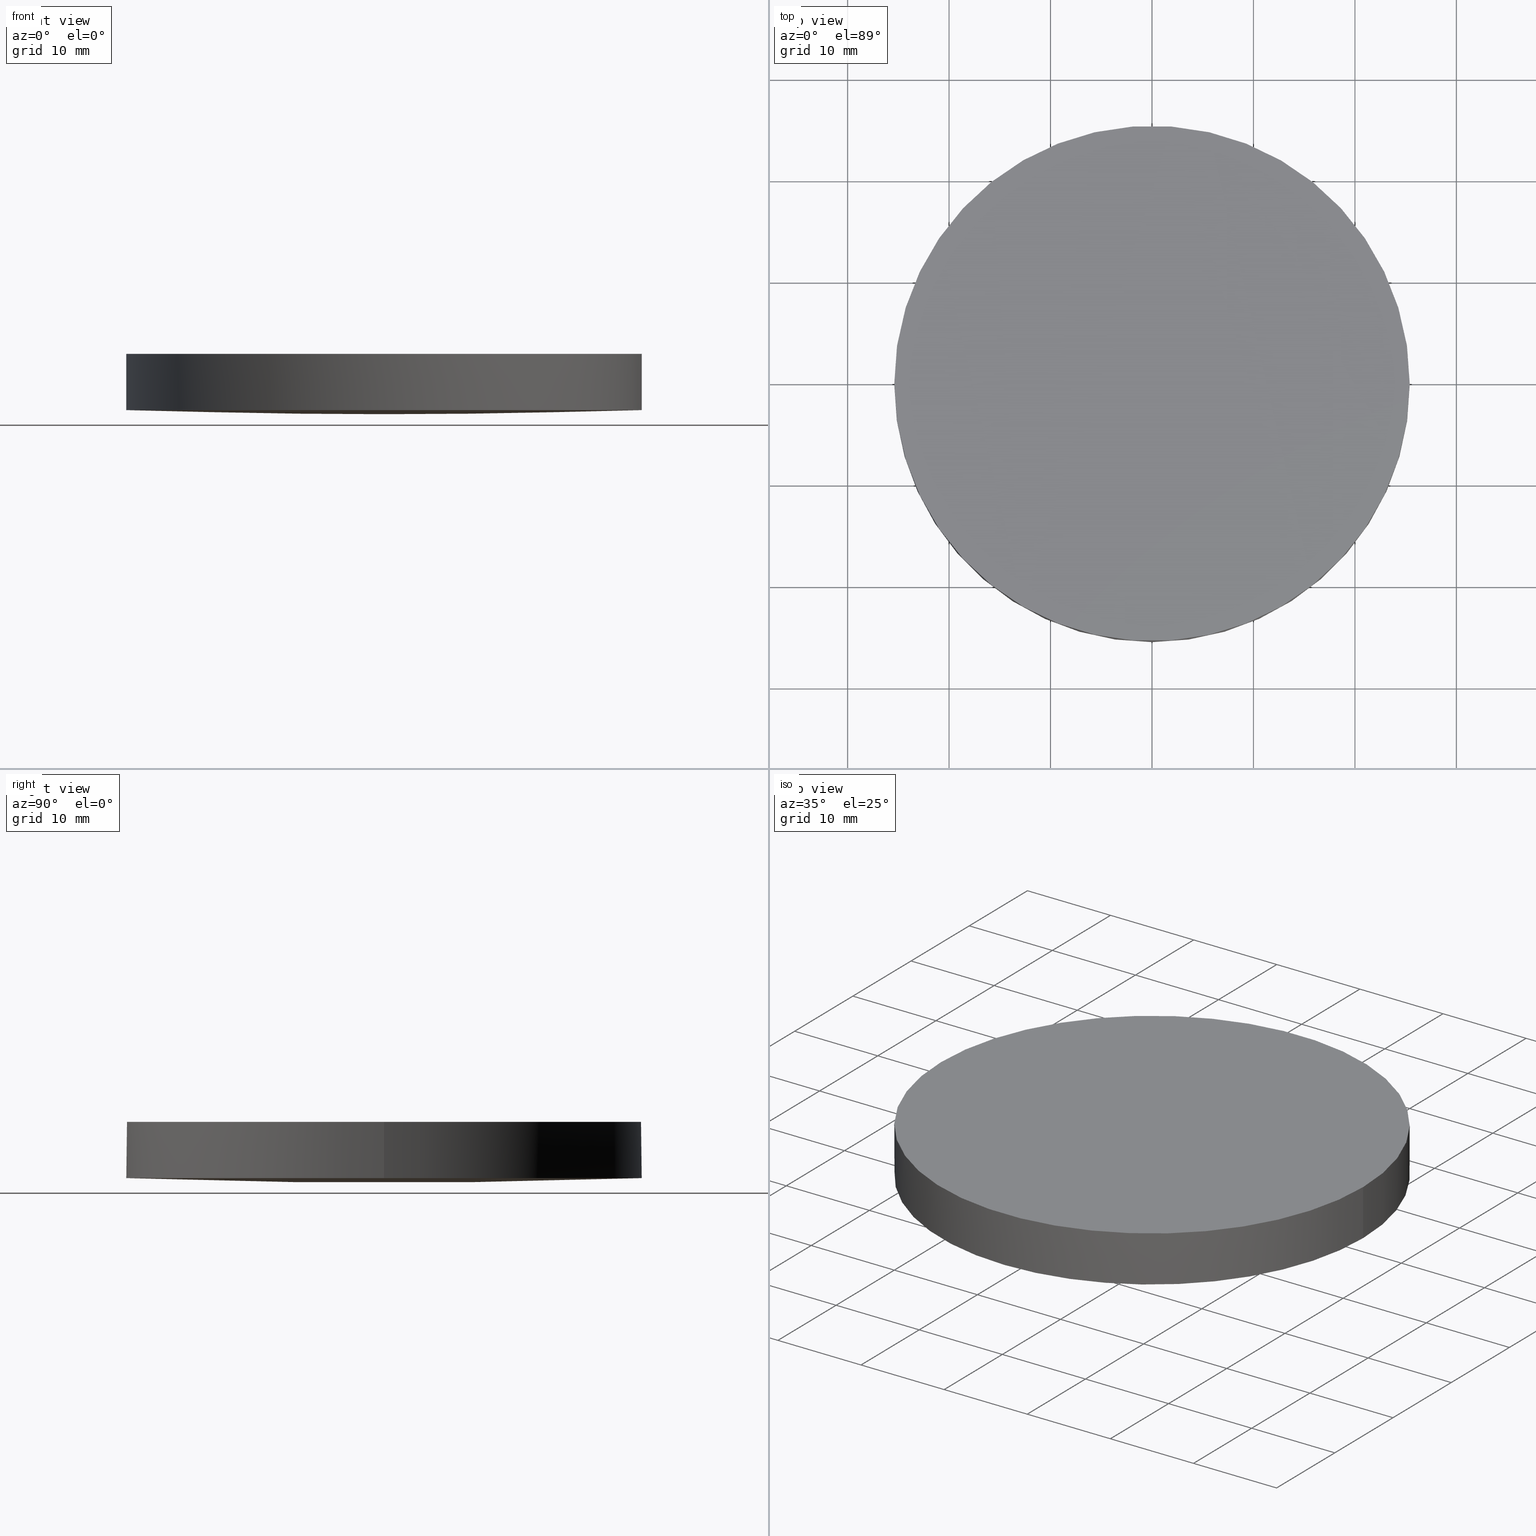
[diagram: canonical four-view strip — front | top / right | iso, engineering-drawing reading convention]
A machine part, canonical four-view strip (front | top / right | iso — engineering-drawing reading convention). The complete STEP part file that produces these views, byte-faithful:
ISO-10303-21;
HEADER;
FILE_DESCRIPTION (( 'STEP AP203' ),
    '1' );
FILE_NAME ('110-1550E UVFS pl-cx 50.8 F1500.STEP',
    '2018-12-13T15:08:55',
    ( '' ),
    ( '' ),
    'SwSTEP 2.0',
    'SolidWorks 2017',
    '' );
FILE_SCHEMA (( 'CONFIG_CONTROL_DESIGN' ));
ENDSEC;

DATA;
#1 = DIRECTION ( 'NONE',  ( -0.0000000000000000000, -0.0000000000000000000, -1.000000000000000000 ) ) ;
#2 = CARTESIAN_POINT ( 'NONE',  ( 0.0000000000000000000, 0.0000000000000000000, 0.0000000000000000000 ) ) ;
#3 = DIRECTION ( 'NONE',  ( 1.000000000000000000, 0.0000000000000000000, 0.0000000000000000000 ) ) ;
#4 = CARTESIAN_POINT ( 'NONE',  ( -25.39999999999999900, 7.995584178184967200E-015, 0.4518724189069909800 ) ) ;
#5 = ORIENTED_EDGE ( 'NONE', *, *, #77, .T. ) ;
#6 = DIRECTION ( 'NONE',  ( 0.0000000000000000000, 0.0000000000000000000, 1.000000000000000000 ) ) ;
#7 = APPROVAL_ROLE ( '' ) ;
#8 = APPROVAL ( #97, 'UNSPECIFIED' ) ;
#9 = APPLICATION_PROTOCOL_DEFINITION ( 'international standard', 'config_control_design', 1994, #169 ) ;
#10 = AXIS2_PLACEMENT_3D ( 'NONE', #166, #26, #24 ) ;
#11 = COORDINATED_UNIVERSAL_TIME_OFFSET ( 2, 0, .AHEAD. ) ;
#12 = ORIENTED_EDGE ( 'NONE', *, *, #182, .T. ) ;
#13 = CARTESIAN_POINT ( 'NONE',  ( 9.992007221626412800E-016, 4.884981308350691100E-015, 6.000000000000000000 ) ) ;
#14 = PERSON_AND_ORGANIZATION ( #175, #111 ) ;
#15 = ORIENTED_EDGE ( 'NONE', *, *, #182, .F. ) ;
#16 = DIRECTION ( 'NONE',  ( 1.000000000000000000, 0.0000000000000000000, 0.0000000000000000000 ) ) ;
#17 = CARTESIAN_POINT ( 'NONE',  ( 25.39999999999999900, 4.884981308350691100E-015, 0.4518724189069909800 ) ) ;
#18 = CARTESIAN_POINT ( 'NONE',  ( 9.992007221626412800E-016, 4.884981308350691100E-015, 0.4518724189069909800 ) ) ;
#19 = DIRECTION ( 'NONE',  ( 1.000000000000000000, 0.0000000000000000000, 0.0000000000000000000 ) ) ;
#20 = CARTESIAN_POINT ( 'NONE',  ( -25.53577561328597400, -25.70466906950982300, 0.9197954570985267300 ) ) ;
#21 = CC_DESIGN_APPROVAL ( #8, ( #215 ) ) ;
#22 = CARTESIAN_POINT ( 'NONE',  ( 9.992007221626412800E-016, 4.884981308350691100E-015, 0.4518724189069909800 ) ) ;
#23 = ORIENTED_EDGE ( 'NONE', *, *, #203, .F. ) ;
#24 = DIRECTION ( 'NONE',  ( -3.255406916435471100E-016, -1.000000000000000000, -3.109432921510030800E-016 ) ) ;
#25 = AXIS2_PLACEMENT_3D ( 'NONE', #107, #1, #19 ) ;
#26 = DIRECTION ( 'NONE',  ( 1.000000000000000000, -3.255406916435470100E-016, -2.813334110390849800E-016 ) ) ;
#27 = CALENDAR_DATE ( 2018, 13, 12 ) ;
#28 = VECTOR ( 'NONE', #67, 1000.000000000000000 ) ;
#29 = CYLINDRICAL_SURFACE ( 'NONE', #195, 25.39999999999999900 ) ;
#30 = UNCERTAINTY_MEASURE_WITH_UNIT (LENGTH_MEASURE( 1.000000000000000100E-005 ), #89, 'distance_accuracy_value', 'NONE');
#31 = LOCAL_TIME ( 17, 8, 55.00000000000000000, #176 ) ;
#32 = EDGE_LOOP ( 'NONE', ( #78, #38, #171, #12, #217 ) ) ;
#33 = CARTESIAN_POINT ( 'NONE',  ( 25.53577561328555500, -25.70466906950983700, 0.9197954570984757700 ) ) ;
#34 = EDGE_CURVE ( 'NONE', #128, #234, #213, .T. ) ;
#35 = CC_DESIGN_PERSON_AND_ORGANIZATION_ASSIGNMENT ( #14, #60, ( #143 ) ) ;
#36 = EDGE_LOOP ( 'NONE', ( #185, #5, #40, #15, #152 ) ) ;
#37 = DIRECTION ( 'NONE',  ( 0.0000000000000000000, 0.0000000000000000000, 1.000000000000000000 ) ) ;
#38 = ORIENTED_EDGE ( 'NONE', *, *, #88, .F. ) ;
#39 = CARTESIAN_POINT ( 'NONE',  ( -17.02703099921650700, -25.70466906950983000, 0.6151355803498523800 ) ) ;
#40 = ORIENTED_EDGE ( 'NONE', *, *, #34, .T. ) ;
#41 = CARTESIAN_POINT ( 'NONE',  ( -17.04175489891647600, -8.571926451094192600, -0.001841013024038537900 ) ) ;
#42 = VERTEX_POINT ( 'NONE', #84 ) ;
#43 = APPLICATION_CONTEXT ( 'configuration controlled 3d designs of mechanical parts and assemblies' ) ;
#44 = EDGE_CURVE ( 'NONE', #234, #128, #208, .T. ) ;
#45 = SECURITY_CLASSIFICATION ( '', '', #62 ) ;
#46 = DATE_TIME_ROLE ( 'classification_date' ) ;
#47 = APPROVAL_DATE_TIME ( #125, #8 ) ;
#48 = LINE ( 'NONE', #228, #28 ) ;
#49 = CARTESIAN_POINT ( 'NONE',  ( 17.04175489891612100, -8.571926451094199700, -0.001841013024078599400 ) ) ;
#50 = LOCAL_TIME ( 17, 8, 55.00000000000000000, #191 ) ;
#51 = DIRECTION ( 'NONE',  ( 1.000000000000000000, 0.0000000000000000000, -0.0000000000000000000 ) ) ;
#52 = CIRCLE ( 'NONE', #25, 25.39999999999999900 ) ;
#53 = CARTESIAN_POINT ( 'NONE',  ( -8.514197117048677700, 25.70466906951017400, 0.4627812480441714800 ) ) ;
#54 = CC_DESIGN_APPROVAL ( #201, ( #45 ) ) ;
#55 = COORDINATED_UNIVERSAL_TIME_OFFSET ( 2, 0, .AHEAD. ) ;
#56 = VERTEX_POINT ( 'NONE', #194 ) ;
#57 = CARTESIAN_POINT ( 'NONE',  ( -8.514197117048691900, -25.70466906950983000, 0.4627812480441715300 ) ) ;
#58 = DIRECTION ( 'NONE',  ( 1.000000000000000000, 0.0000000000000000000, 0.0000000000000000000 ) ) ;
#59 = CALENDAR_DATE ( 2018, 13, 12 ) ;
#60 = PERSON_AND_ORGANIZATION_ROLE ( 'creator' ) ;
#61 = APPROVAL_ROLE ( '' ) ;
#62 = SECURITY_CLASSIFICATION_LEVEL ( 'unclassified' ) ;
#63 = AXIS2_PLACEMENT_3D ( 'NONE', #147, #162, #51 ) ;
#64 = ORIENTED_EDGE ( 'NONE', *, *, #44, .F. ) ;
#65 = DIRECTION ( 'NONE',  ( -0.0000000000000000000, -0.0000000000000000000, -1.000000000000000000 ) ) ;
#66 = CC_DESIGN_SECURITY_CLASSIFICATION ( #45, ( #143 ) ) ;
#67 = DIRECTION ( 'NONE',  ( 0.0000000000000000000, 0.0000000000000000000, 1.000000000000000000 ) ) ;
#68 = FACE_OUTER_BOUND ( 'NONE', #230, .T. ) ;
#69 = LOCAL_TIME ( 17, 8, 55.00000000000000000, #55 ) ;
#70 = PLANE ( 'NONE',  #63 ) ;
#71 = EDGE_LOOP ( 'NONE', ( #23, #148, #119 ) ) ;
#72 = DIRECTION ( 'NONE',  ( 1.000000000000000000, 0.0000000000000000000, 0.0000000000000000000 ) ) ;
#73 = CARTESIAN_POINT ( 'NONE',  ( 9.992007221626412800E-016, 4.884981308350691100E-015, 0.4518724189069909800 ) ) ;
#74 = DIRECTION ( 'NONE',  ( 1.000000000000000000, 0.0000000000000000000, 0.0000000000000000000 ) ) ;
#75 = CARTESIAN_POINT ( 'NONE',  ( -2.012279232133096200E-013, 25.70466906951016700, 0.4627812480441669300 ) ) ;
#76 = CALENDAR_DATE ( 2018, 13, 12 ) ;
#77 = EDGE_CURVE ( 'NONE', #205, #128, #48, .T. ) ;
#78 = ORIENTED_EDGE ( 'NONE', *, *, #77, .F. ) ;
#79 = PERSON_AND_ORGANIZATION ( #175, #111 ) ;
#80 = CARTESIAN_POINT ( 'NONE',  ( 17.04175489891612800, 8.571926451094526600, -0.001841013024075671600 ) ) ;
#81 = CARTESIAN_POINT ( 'NONE',  ( 8.514197117048384600, -25.70466906950983700, 0.4627812480441060900 ) ) ;
#82 = DIRECTION ( 'NONE',  ( 1.000000000000000000, 0.0000000000000000000, 0.0000000000000000000 ) ) ;
#83 = ORIENTED_EDGE ( 'NONE', *, *, #110, .T. ) ;
#84 = CARTESIAN_POINT ( 'NONE',  ( -2.197407186387518400E-014, 25.39999999999935200, 0.4518724189069877600 ) ) ;
#85 = ADVANCED_FACE ( 'NONE', ( #209 ), #160, .T. ) ;
#86 = COORDINATED_UNIVERSAL_TIME_OFFSET ( 2, 0, .AHEAD. ) ;
#87 = FACE_OUTER_BOUND ( 'NONE', #71, .T. ) ;
#88 = EDGE_CURVE ( 'NONE', #157, #205, #224, .T. ) ;
#89 =( LENGTH_UNIT ( ) NAMED_UNIT ( * ) SI_UNIT ( .MILLI., .METRE. ) );
#90 = CARTESIAN_POINT ( 'NONE',  ( -17.04175489891647300, 8.571926451094535400, -0.001841013024035610400 ) ) ;
#91 = DATE_AND_TIME ( #27, #69 ) ;
#92 = PERSON_AND_ORGANIZATION ( #175, #111 ) ;
#93 = CARTESIAN_POINT ( 'NONE',  ( -2.081668171172168800E-013, 8.571926451094528300, -0.1543270917221383200 ) ) ;
#94 = FACE_OUTER_BOUND ( 'NONE', #32, .T. ) ;
#95 = AXIS2_PLACEMENT_3D ( 'NONE', #73, #167, #3 ) ;
#96 = AXIS2_PLACEMENT_3D ( 'NONE', #2, #6, #134 ) ;
#97 = APPROVAL_STATUS ( 'not_yet_approved' ) ;
#98 = PERSON_AND_ORGANIZATION ( #175, #111 ) ;
#99 = ORIENTED_EDGE ( 'NONE', *, *, #203, .T. ) ;
#100 = APPROVAL_PERSON_ORGANIZATION ( #98, #201, #137 ) ;
#101 = CARTESIAN_POINT ( 'NONE',  ( 25.53577561328557300, 25.70466906951016000, 0.9197954570984757700 ) ) ;
#102 = CARTESIAN_POINT ( 'NONE',  ( 8.521559656318048700, 8.571926451094528300, -0.1543270917221991300 ) ) ;
#103 = CARTESIAN_POINT ( 'NONE',  ( 8.521559656318043400, -8.571926451094197900, -0.1543270917222020500 ) ) ;
#104 = CARTESIAN_POINT ( 'NONE',  ( -3.860765216086626300E-014, -25.70466906950983000, 0.4627812480441084700 ) ) ;
#105 = CARTESIAN_POINT ( 'NONE',  ( 9.992007221626412800E-016, 4.884981308350691100E-015, 6.000000000000000000 ) ) ;
#106 = CIRCLE ( 'NONE', #95, 25.39999999999999900 ) ;
#107 = CARTESIAN_POINT ( 'NONE',  ( 9.992007221626412800E-016, 4.884981308350691100E-015, 0.4518724189069909800 ) ) ;
#108 = PRODUCT ( '110-1550E UVFS pl-cx 50.8 F1500', '110-1550E UVFS pl-cx 50.8 F1500', '', ( #188 ) ) ;
#109 =( GEOMETRIC_REPRESENTATION_CONTEXT ( 3 ) GLOBAL_UNCERTAINTY_ASSIGNED_CONTEXT ( ( #30 ) ) GLOBAL_UNIT_ASSIGNED_CONTEXT ( ( #89, #189, #222 ) ) REPRESENTATION_CONTEXT ( 'NONE', 'WORKASPACE' ) );
#110 = EDGE_CURVE ( 'NONE', #42, #56, #52, .T. ) ;
#111 = ORGANIZATION ( 'UNSPECIFIED', 'UNSPECIFIED', '' ) ;
#112 = CC_DESIGN_PERSON_AND_ORGANIZATION_ASSIGNMENT ( #232, #139, ( #215 ) ) ;
#113 = CARTESIAN_POINT ( 'NONE',  ( -8.521559656318338200, 8.571926451094533700, -0.1543270917221338000 ) ) ;
#114 = VECTOR ( 'NONE', #37, 1000.000000000000000 ) ;
#115 = APPLICATION_PROTOCOL_DEFINITION ( 'international standard', 'config_control_design', 1994, #43 ) ;
#116 = LOCAL_TIME ( 17, 8, 55.00000000000000000, #11 ) ;
#117 = SHAPE_DEFINITION_REPRESENTATION ( #192, #172 ) ;
#118 = AXIS2_PLACEMENT_3D ( 'NONE', #18, #178, #72 ) ;
#119 = ORIENTED_EDGE ( 'NONE', *, *, #218, .T. ) ;
#120 = CARTESIAN_POINT ( 'NONE',  ( -2.762283874210972300E-014, 8.571926451094530100, -0.1543270917221968300 ) ) ;
#121 = CC_DESIGN_PERSON_AND_ORGANIZATION_ASSIGNMENT ( #92, #190, ( #108 ) ) ;
#122 = CARTESIAN_POINT ( 'NONE',  ( 8.514197117048400500, 25.70466906951016700, 0.4627812480441060900 ) ) ;
#123 = CIRCLE ( 'NONE', #10, 714.1000000000000200 ) ;
#124 = PERSON_AND_ORGANIZATION ( #175, #111 ) ;
#125 = DATE_AND_TIME ( #202, #31 ) ;
#126 = DIRECTION ( 'NONE',  ( -0.0000000000000000000, -0.0000000000000000000, -1.000000000000000000 ) ) ;
#127 = CC_DESIGN_DATE_AND_TIME_ASSIGNMENT ( #145, #221, ( #215 ) ) ;
#128 = VERTEX_POINT ( 'NONE', #177 ) ;
#129 = PRODUCT_RELATED_PRODUCT_CATEGORY ( 'detail', '', ( #108 ) ) ;
#130 = EDGE_LOOP ( 'NONE', ( #138, #99, #83 ) ) ;
#131 = CARTESIAN_POINT ( 'NONE',  ( -8.521559656318341800, -8.571926451094194400, -0.1543270917221366600 ) ) ;
#132 = LOCAL_TIME ( 17, 8, 55.00000000000000000, #86 ) ;
#133 = LINE ( 'NONE', #17, #114 ) ;
#134 = DIRECTION ( 'NONE',  ( 1.000000000000000000, 0.0000000000000000000, 0.0000000000000000000 ) ) ;
#135 = APPROVAL ( #223, 'UNSPECIFIED' ) ;
#136 = PERSON_AND_ORGANIZATION_ROLE ( 'design_supplier' ) ;
#137 = APPROVAL_ROLE ( '' ) ;
#138 = ORIENTED_EDGE ( 'NONE', *, *, #198, .T. ) ;
#139 = PERSON_AND_ORGANIZATION_ROLE ( 'creator' ) ;
#140 = APPROVAL_DATE_TIME ( #91, #201 ) ;
#141 = APPROVAL_PERSON_ORGANIZATION ( #227, #8, #61 ) ;
#142 = CIRCLE ( 'NONE', #155, 25.39999999999999900 ) ;
#143 = PRODUCT_DEFINITION_FORMATION_WITH_SPECIFIED_SOURCE ( 'ANY', '', #108, .NOT_KNOWN. ) ;
#144 = DIRECTION ( 'NONE',  ( -0.0000000000000000000, -0.0000000000000000000, -1.000000000000000000 ) ) ;
#145 = DATE_AND_TIME ( #76, #132 ) ;
#146 = AXIS2_PLACEMENT_3D ( 'NONE', #13, #144, #82 ) ;
#147 = CARTESIAN_POINT ( 'NONE',  ( 0.0000000000000000000, 52.02000000000000300, 6.000000000000000000 ) ) ;
#148 = ORIENTED_EDGE ( 'NONE', *, *, #88, .T. ) ;
#149 = CC_DESIGN_DATE_AND_TIME_ASSIGNMENT ( #196, #46, ( #45 ) ) ;
#150 = CARTESIAN_POINT ( 'NONE',  ( 9.992007221626412800E-016, 4.884981308350691100E-015, 0.4518724189069909800 ) ) ;
#151 = CALENDAR_DATE ( 2018, 13, 12 ) ;
#152 = ORIENTED_EDGE ( 'NONE', *, *, #110, .F. ) ;
#153 = CC_DESIGN_APPROVAL ( #135, ( #143 ) ) ;
#154 = APPROVAL_DATE_TIME ( #226, #135 ) ;
#155 = AXIS2_PLACEMENT_3D ( 'NONE', #150, #181, #58 ) ;
#156 = APPROVAL_STATUS ( 'not_yet_approved' ) ;
#157 = VERTEX_POINT ( 'NONE', #193 ) ;
#158 = CARTESIAN_POINT ( 'NONE',  ( 25.55785733727541100, 8.571926451094521200, 0.3030823143207641600 ) ) ;
#159 = CARTESIAN_POINT ( 'NONE',  ( -2.187182066615269500E-014, 25.70466906951016700, 0.4627812480441084700 ) ) ;
#160 =( BOUNDED_SURFACE ( )  B_SPLINE_SURFACE ( 3, 3, ( 
 ( #104, #81, #197, #33 ),
 ( #211, #103, #49, #231 ),
 ( #120, #102, #80, #158 ),
 ( #159, #122, #210, #101 ) ),
 .UNSPECIFIED., .F., .F., .F. ) 
 B_SPLINE_SURFACE_WITH_KNOTS ( ( 4, 4 ),
 ( 4, 4 ),
 ( 0.0000000000000000000, 1.000000000000000000 ),
 ( 0.0000000000000000000, 1.000000000000000000 ),
 .UNSPECIFIED. ) 
 GEOMETRIC_REPRESENTATION_ITEM ( )  RATIONAL_B_SPLINE_SURFACE ( (
 ( 1.000000000000000000, 0.9998932579030901400, 0.9998932579030901400, 1.000000000000000000),
 ( 0.9995679585043699700, 0.9994612625244753100, 0.9994612625244753100, 0.9995679585043699700),
 ( 0.9995679585043699700, 0.9994612625244753100, 0.9994612625244753100, 0.9995679585043699700),
 ( 1.000000000000000000, 0.9998932579030901400, 0.9998932579030901400, 1.000000000000000000) ) ) 
 REPRESENTATION_ITEM ( '' )  SURFACE ( )  );
#161 = ADVANCED_FACE ( 'NONE', ( #170 ), #212, .T. ) ;
#162 = DIRECTION ( 'NONE',  ( 0.0000000000000000000, 0.0000000000000000000, 1.000000000000000000 ) ) ;
#163 = CC_DESIGN_PERSON_AND_ORGANIZATION_ASSIGNMENT ( #124, #136, ( #143 ) ) ;
#164 = CARTESIAN_POINT ( 'NONE',  ( -2.116362640691704900E-013, -8.571926451094194400, -0.1543270917221411500 ) ) ;
#165 = AXIS2_PLACEMENT_3D ( 'NONE', #235, #126, #16 ) ;
#166 = CARTESIAN_POINT ( 'NONE',  ( 1.705302565824239900E-013, 2.273736754432320100E-013, 714.1000000000000200 ) ) ;
#167 = DIRECTION ( 'NONE',  ( -0.0000000000000000000, -0.0000000000000000000, -1.000000000000000000 ) ) ;
#168 = PERSON_AND_ORGANIZATION_ROLE ( 'classification_officer' ) ;
#169 = APPLICATION_CONTEXT ( 'configuration controlled 3d designs of mechanical parts and assemblies' ) ;
#170 = FACE_OUTER_BOUND ( 'NONE', #36, .T. ) ;
#171 = ORIENTED_EDGE ( 'NONE', *, *, #198, .F. ) ;
#172 = ADVANCED_BREP_SHAPE_REPRESENTATION ( '110-1550E UVFS pl-cx 50.8 F1500', ( #214, #96 ), #109 ) ;
#173 = DIRECTION ( 'NONE',  ( 1.000000000000000000, 0.0000000000000000000, 0.0000000000000000000 ) ) ;
#174 = ADVANCED_FACE ( 'NONE', ( #68 ), #70, .T. ) ;
#175 = PERSON ( 'UNSPECIFIED', 'UNSPECIFIED', 'UNSPECIFIED', ('UNSPECIFIED'), ('UNSPECIFIED'), ('UNSPECIFIED') ) ;
#176 = COORDINATED_UNIVERSAL_TIME_OFFSET ( 2, 0, .AHEAD. ) ;
#177 = CARTESIAN_POINT ( 'NONE',  ( -25.39999999999999900, 7.995584178184967200E-015, 6.000000000000000000 ) ) ;
#178 = DIRECTION ( 'NONE',  ( 0.0000000000000000000, 0.0000000000000000000, 1.000000000000000000 ) ) ;
#179 = CLOSED_SHELL ( 'NONE', ( #85, #161, #229, #200, #174 ) ) ;
#180 =( BOUNDED_SURFACE ( )  B_SPLINE_SURFACE ( 3, 3, ( 
 ( #20, #39, #57, #184 ),
 ( #206, #41, #131, #164 ),
 ( #204, #90, #113, #93 ),
 ( #219, #186, #53, #75 ) ),
 .UNSPECIFIED., .F., .F., .T. ) 
 B_SPLINE_SURFACE_WITH_KNOTS ( ( 4, 4 ),
 ( 4, 4 ),
 ( 0.0000000000000000000, 1.000000000000000000 ),
 ( 0.0000000000000000000, 1.000000000000000000 ),
 .UNSPECIFIED. ) 
 GEOMETRIC_REPRESENTATION_ITEM ( )  RATIONAL_B_SPLINE_SURFACE ( (
 ( 1.000000000000000000, 0.9998932579030901400, 0.9998932579030901400, 1.000000000000000000),
 ( 0.9995679585043699700, 0.9994612625244753100, 0.9994612625244753100, 0.9995679585043699700),
 ( 0.9995679585043699700, 0.9994612625244753100, 0.9994612625244753100, 0.9995679585043699700),
 ( 1.000000000000000000, 0.9998932579030901400, 0.9998932579030901400, 1.000000000000000000) ) ) 
 REPRESENTATION_ITEM ( '' )  SURFACE ( )  );
#181 = DIRECTION ( 'NONE',  ( -0.0000000000000000000, -0.0000000000000000000, -1.000000000000000000 ) ) ;
#182 = EDGE_CURVE ( 'NONE', #56, #234, #133, .T. ) ;
#183 = PERSON_AND_ORGANIZATION ( #175, #111 ) ;
#184 = CARTESIAN_POINT ( 'NONE',  ( -2.151057110211240800E-013, -25.70466906950983000, 0.4627812480441670400 ) ) ;
#185 = ORIENTED_EDGE ( 'NONE', *, *, #218, .F. ) ;
#186 = CARTESIAN_POINT ( 'NONE',  ( -17.02703099921649300, 25.70466906951017400, 0.6151355803498522700 ) ) ;
#187 = CC_DESIGN_PERSON_AND_ORGANIZATION_ASSIGNMENT ( #183, #168, ( #45 ) ) ;
#188 = MECHANICAL_CONTEXT ( 'NONE', #169, 'mechanical' ) ;
#189 =( NAMED_UNIT ( * ) PLANE_ANGLE_UNIT ( ) SI_UNIT ( $, .RADIAN. ) );
#190 = PERSON_AND_ORGANIZATION_ROLE ( 'design_owner' ) ;
#191 = COORDINATED_UNIVERSAL_TIME_OFFSET ( 2, 0, .AHEAD. ) ;
#192 = PRODUCT_DEFINITION_SHAPE ( 'NONE', 'NONE',  #215 ) ;
#193 = CARTESIAN_POINT ( 'NONE',  ( -3.851153899936688400E-014, -25.39999999999912100, 0.4518724189069877600 ) ) ;
#194 = CARTESIAN_POINT ( 'NONE',  ( 25.39999999999999900, 4.884981308350691100E-015, 0.4518724189069909800 ) ) ;
#195 = AXIS2_PLACEMENT_3D ( 'NONE', #22, #220, #74 ) ;
#196 = DATE_AND_TIME ( #59, #50 ) ;
#197 = CARTESIAN_POINT ( 'NONE',  ( 17.02703099921614800, -25.70466906950983700, 0.6151355803498121900 ) ) ;
#198 = EDGE_CURVE ( 'NONE', #56, #157, #106, .T. ) ;
#199 = ORIENTED_EDGE ( 'NONE', *, *, #34, .F. ) ;
#200 = ADVANCED_FACE ( 'NONE', ( #94 ), #29, .T. ) ;
#201 = APPROVAL ( #156, 'UNSPECIFIED' ) ;
#202 = CALENDAR_DATE ( 2018, 13, 12 ) ;
#203 = EDGE_CURVE ( 'NONE', #157, #42, #123, .T. ) ;
#204 = CARTESIAN_POINT ( 'NONE',  ( -25.55785733727581300, 8.571926451094535400, 0.3030823143208151700 ) ) ;
#205 = VERTEX_POINT ( 'NONE', #4 ) ;
#206 = CARTESIAN_POINT ( 'NONE',  ( -25.55785733727581600, -8.571926451094185500, 0.3030823143208122300 ) ) ;
#207 = APPROVAL_PERSON_ORGANIZATION ( #79, #135, #7 ) ;
#208 = CIRCLE ( 'NONE', #146, 25.39999999999999900 ) ;
#209 = FACE_OUTER_BOUND ( 'NONE', #130, .T. ) ;
#210 = CARTESIAN_POINT ( 'NONE',  ( 17.02703099921616200, 25.70466906951016700, 0.6151355803498121900 ) ) ;
#211 = CARTESIAN_POINT ( 'NONE',  ( -3.320386047332349100E-014, -8.571926451094192600, -0.1543270917221997400 ) ) ;
#212 = CYLINDRICAL_SURFACE ( 'NONE', #118, 25.39999999999999900 ) ;
#213 = CIRCLE ( 'NONE', #233, 25.39999999999999900 ) ;
#214 = MANIFOLD_SOLID_BREP ( 'Imported1', #179 ) ;
#215 = PRODUCT_DEFINITION ( 'UNKNOWN', '', #143, #225 ) ;
#216 = CARTESIAN_POINT ( 'NONE',  ( 25.39999999999999900, 4.884981308350691100E-015, 6.000000000000000000 ) ) ;
#217 = ORIENTED_EDGE ( 'NONE', *, *, #44, .T. ) ;
#218 = EDGE_CURVE ( 'NONE', #205, #42, #142, .T. ) ;
#219 = CARTESIAN_POINT ( 'NONE',  ( -25.53577561328596000, 25.70466906951017400, 0.9197954570985267300 ) ) ;
#220 = DIRECTION ( 'NONE',  ( 0.0000000000000000000, 0.0000000000000000000, 1.000000000000000000 ) ) ;
#221 = DATE_TIME_ROLE ( 'creation_date' ) ;
#222 =( NAMED_UNIT ( * ) SI_UNIT ( $, .STERADIAN. ) SOLID_ANGLE_UNIT ( ) );
#223 = APPROVAL_STATUS ( 'not_yet_approved' ) ;
#224 = CIRCLE ( 'NONE', #165, 25.39999999999999900 ) ;
#225 = DESIGN_CONTEXT ( 'detailed design', #43, 'design' ) ;
#226 = DATE_AND_TIME ( #151, #116 ) ;
#227 = PERSON_AND_ORGANIZATION ( #175, #111 ) ;
#228 = CARTESIAN_POINT ( 'NONE',  ( -25.39999999999999900, 7.995584178184967200E-015, 0.4518724189069909800 ) ) ;
#229 = ADVANCED_FACE ( 'NONE', ( #87 ), #180, .T. ) ;
#230 = EDGE_LOOP ( 'NONE', ( #64, #199 ) ) ;
#231 = CARTESIAN_POINT ( 'NONE',  ( 25.55785733727540400, -8.571926451094201500, 0.3030823143207612100 ) ) ;
#232 = PERSON_AND_ORGANIZATION ( #175, #111 ) ;
#233 = AXIS2_PLACEMENT_3D ( 'NONE', #105, #65, #173 ) ;
#234 = VERTEX_POINT ( 'NONE', #216 ) ;
#235 = CARTESIAN_POINT ( 'NONE',  ( 9.992007221626412800E-016, 4.884981308350691100E-015, 0.4518724189069909800 ) ) ;
ENDSEC;
END-ISO-10303-21;
